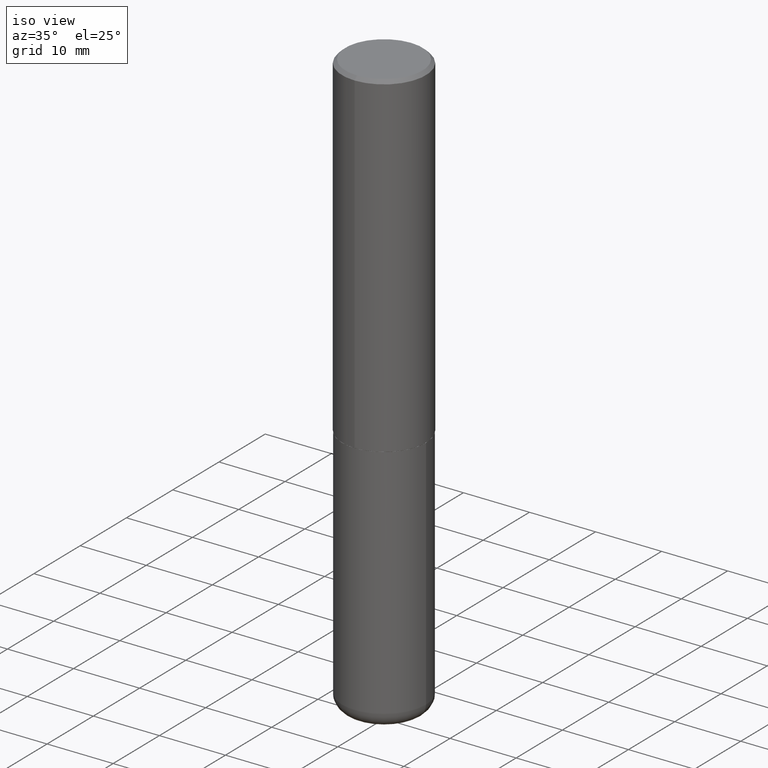
[diagram: clean part render]
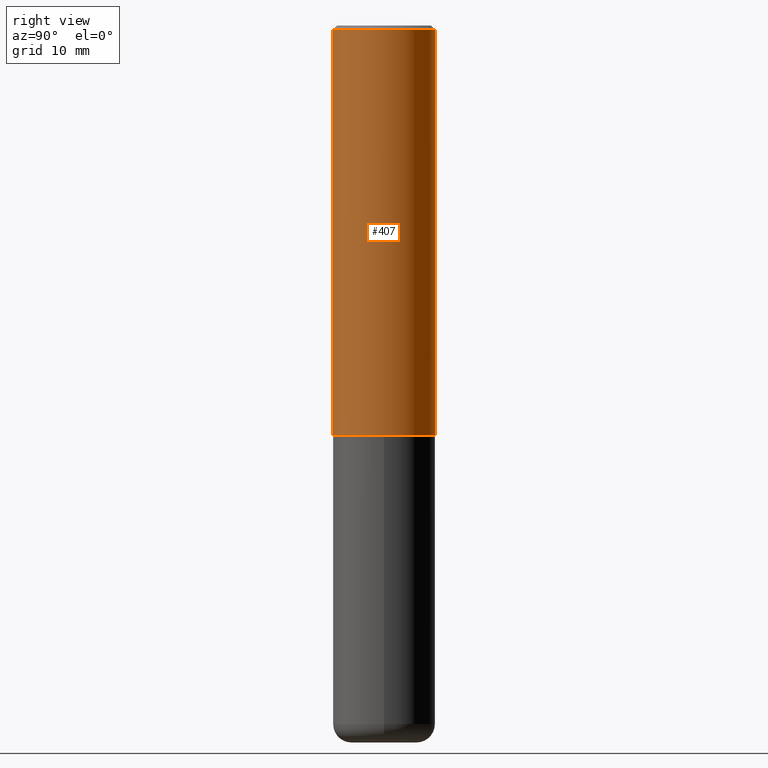
[diagram: tour spotlight — one face highlighted and labeled with its STEP entity id]
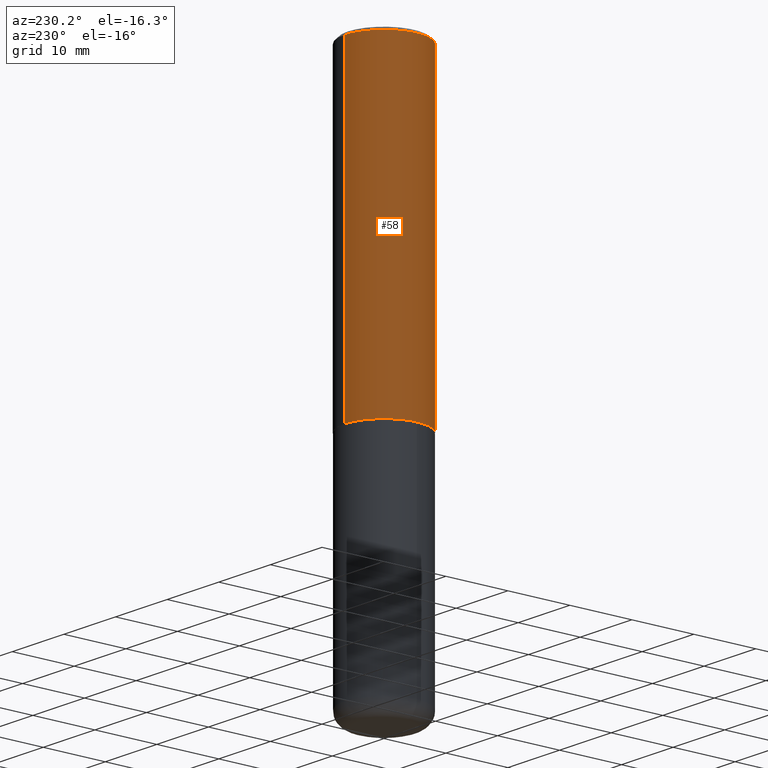
[diagram: tour spotlight — one face highlighted and labeled with its STEP entity id]
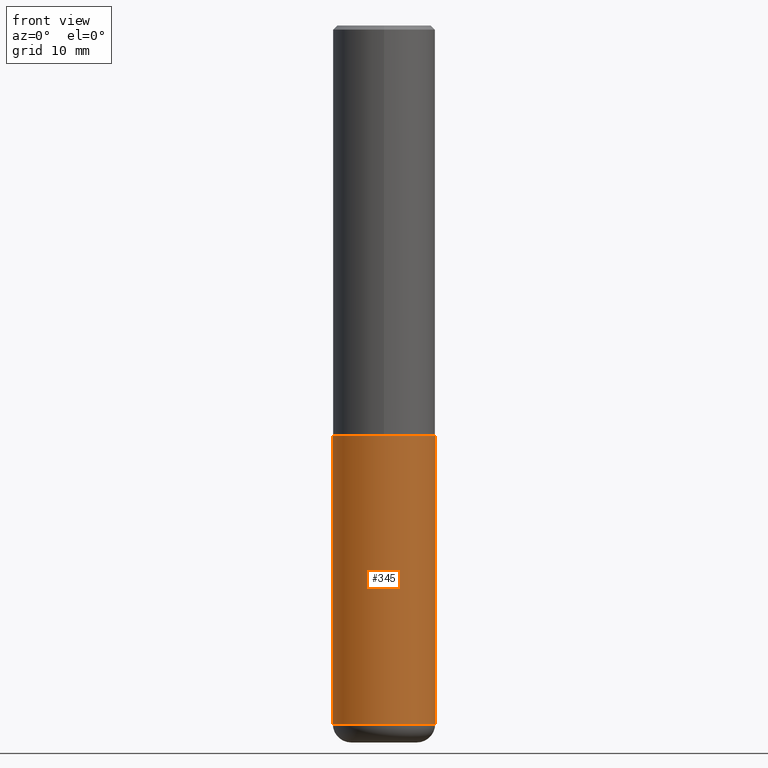
[diagram: tour spotlight — one face highlighted and labeled with its STEP entity id]
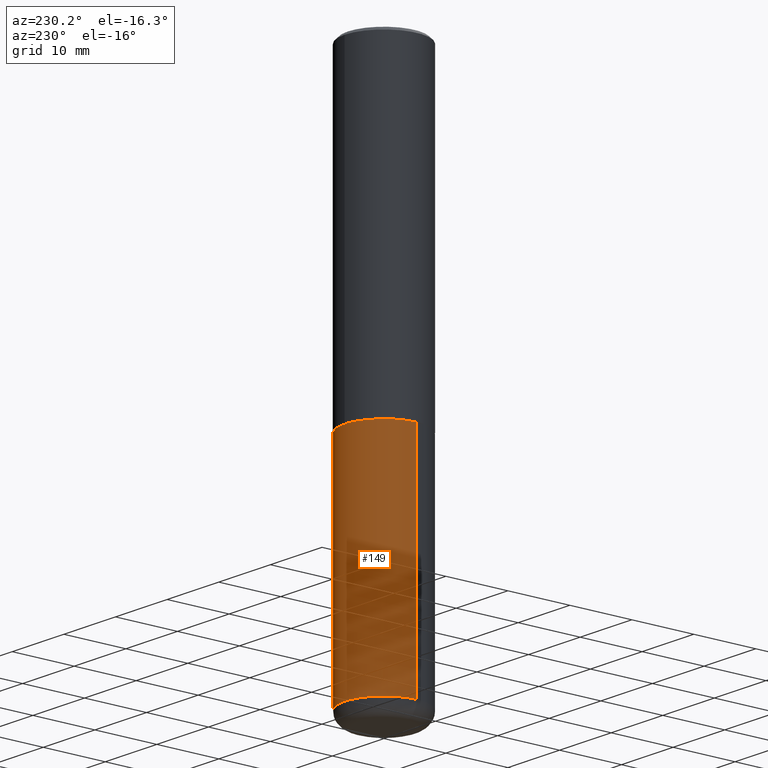
[diagram: tour spotlight — one face highlighted and labeled with its STEP entity id]
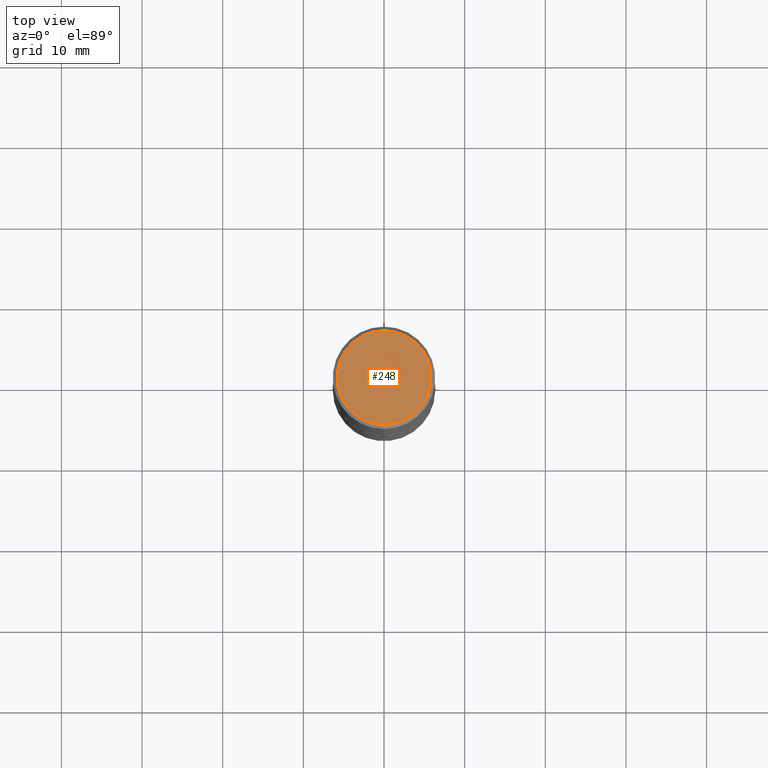
[diagram: tour spotlight — one face highlighted and labeled with its STEP entity id]
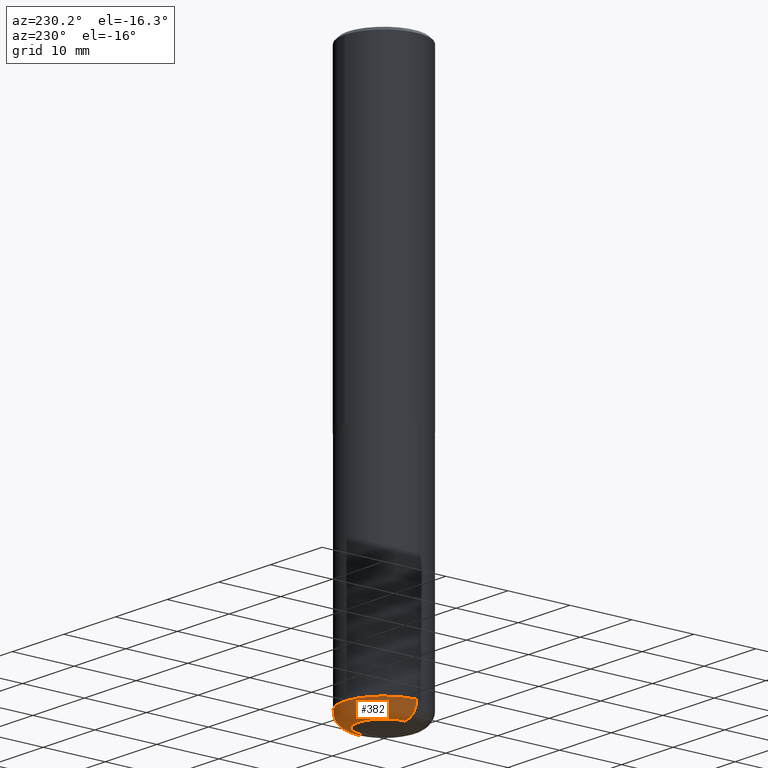
[diagram: tour spotlight — one face highlighted and labeled with its STEP entity id]
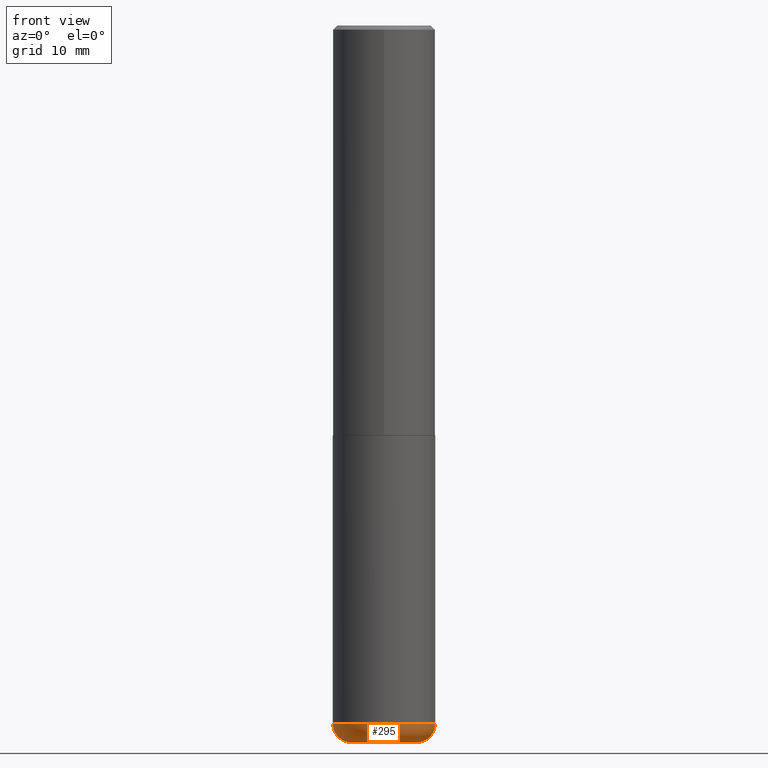
[diagram: tour spotlight — one face highlighted and labeled with its STEP entity id]
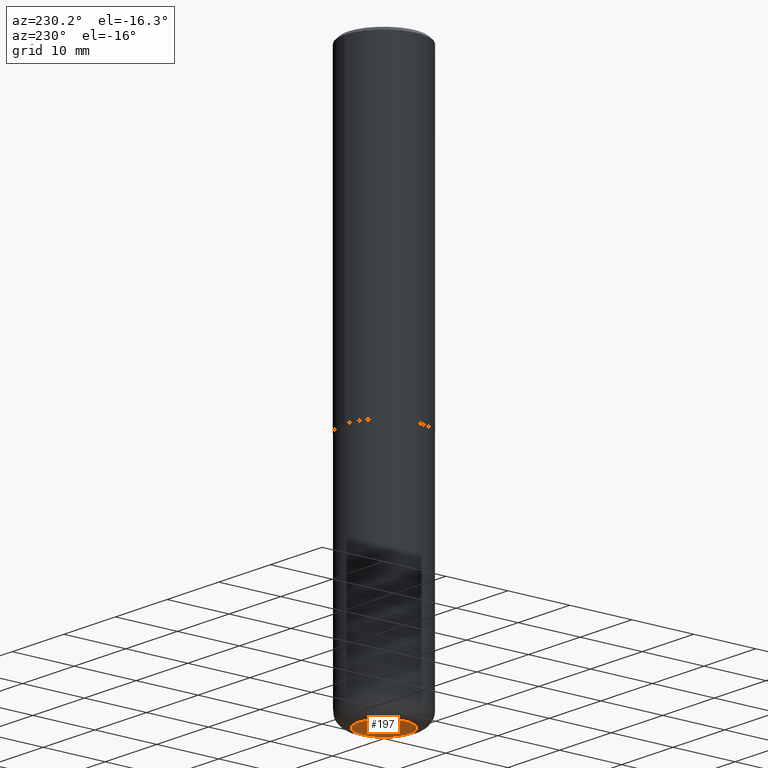
[diagram: tour spotlight — one face highlighted and labeled with its STEP entity id]
A machine part: a face-by-face anatomy tour. The part has 14 B-rep faces; the first image is the clean iso view, then the 8 largest visible faces are spotlighted one at a time (largest first), each with its STEP entity span.

Face 1 — right view, entity #407. In plain terms, the highlighted cylindrical surface (partial cylindrical patch) has radius 6.35 mm, axis along (-0, 0, 1).
Definition (entity closure, byte-faithful):
#2 = ORIENTED_EDGE ( 'NONE', *, *, #416, .F. ) ;
#16 = CARTESIAN_POINT ( 'NONE',  ( 4.891474366573836672E-31, -6.982194015116674235E-17, -0.02000000000000005593 ) ) ;
#33 = ORIENTED_EDGE ( 'NONE', *, *, #300, .T. ) ;
#55 = CARTESIAN_POINT ( 'NONE',  ( 4.889028629390535480E-29, -6.978702918109095527E-15, -1.998999999999999666 ) ) ;
#67 = CARTESIAN_POINT ( 'NONE',  ( -1.745740669421519543E-15, -0.2500000000000072164, -1.998999999999998778 ) ) ;
#86 = CARTESIAN_POINT ( 'NONE',  ( 1.745740669421566875E-15, 0.2499999999999999167, -0.02000000000000092676 ) ) ;
#90 = CIRCLE ( 'NONE', #163, 0.2500000000000000000 ) ;
#121 = VERTEX_POINT ( 'NONE', #297 ) ;
#125 = ORIENTED_EDGE ( 'NONE', *, *, #323, .T. ) ;
#127 = VERTEX_POINT ( 'NONE', #67 ) ;
#133 = CARTESIAN_POINT ( 'NONE',  ( -1.745740669421567467E-15, -0.2500000000000001110, 8.727742518895823935E-16 ) ) ;
#146 = EDGE_LOOP ( 'NONE', ( #33, #125, #2, #148 ) ) ;
#148 = ORIENTED_EDGE ( 'NONE', *, *, #191, .F. ) ;
#163 = AXIS2_PLACEMENT_3D ( 'NONE', #16, #365, #222 ) ;
#168 = CYLINDRICAL_SURFACE ( 'NONE', #216, 0.2500000000000001110 ) ;
#172 = DIRECTION ( 'NONE',  ( -6.982962677686265922E-15, -1.000000000000000000, 3.278217592397112312E-15 ) ) ;
#175 = CARTESIAN_POINT ( 'NONE',  ( 0.000000000000000000, 0.000000000000000000, 0.000000000000000000 ) ) ;
#191 = EDGE_CURVE ( 'NONE', #127, #121, #244, .T. ) ;
#198 = VERTEX_POINT ( 'NONE', #246 ) ;
#216 = AXIS2_PLACEMENT_3D ( 'NONE', #175, #313, #302 ) ;
#222 = DIRECTION ( 'NONE',  ( -6.982962677686265922E-15, -1.000000000000000000, 3.483106191921935554E-15 ) ) ;
#235 = VECTOR ( 'NONE', #338, 39.37007874015748143 ) ;
#236 = VERTEX_POINT ( 'NONE', #86 ) ;
#244 = LINE ( 'NONE', #133, #334 ) ;
#246 = CARTESIAN_POINT ( 'NONE',  ( 1.776356839400276103E-15, 0.2499999999999933109, -1.999000000000000554 ) ) ;
#279 = DIRECTION ( 'NONE',  ( -2.445737183286911680E-29, 3.491097007558327602E-15, 1.000000000000000000 ) ) ;
#281 = LINE ( 'NONE', #328, #235 ) ;
#297 = CARTESIAN_POINT ( 'NONE',  ( -1.715124499442882299E-15, -0.2500000000000000555, -0.01999999999999918510 ) ) ;
#300 = EDGE_CURVE ( 'NONE', #127, #198, #393, .T. ) ;
#302 = DIRECTION ( 'NONE',  ( -6.982962677686266711E-15, -1.000000000000000000, 3.491097007558327996E-15 ) ) ;
#313 = DIRECTION ( 'NONE',  ( -2.445737183286911680E-29, 3.491097007558327602E-15, 1.000000000000000000 ) ) ;
#323 = EDGE_CURVE ( 'NONE', #198, #236, #281, .T. ) ;
#328 = CARTESIAN_POINT ( 'NONE',  ( 1.776356839400251254E-15, 0.2500000000000001110, -8.727742518895823935E-16 ) ) ;
#334 = VECTOR ( 'NONE', #366, 39.37007874015748143 ) ;
#338 = DIRECTION ( 'NONE',  ( -2.445737183286911680E-29, 3.491097007558327602E-15, 1.000000000000000000 ) ) ;
#348 = AXIS2_PLACEMENT_3D ( 'NONE', #55, #279, #172 ) ;
#363 = FACE_OUTER_BOUND ( 'NONE', #146, .T. ) ;
#365 = DIRECTION ( 'NONE',  ( -2.445737183286911680E-29, 3.491097007558327602E-15, 1.000000000000000000 ) ) ;
#366 = DIRECTION ( 'NONE',  ( -2.445737183286911680E-29, 3.491097007558327602E-15, 1.000000000000000000 ) ) ;
#393 = CIRCLE ( 'NONE', #348, 0.2500000000000002776 ) ;
#407 = ADVANCED_FACE ( 'NONE', ( #363 ), #168, .T. ) ;
#416 = EDGE_CURVE ( 'NONE', #121, #236, #90, .T. ) ;

Face 2 — auxiliary view, entity #58. In plain terms, the highlighted cylindrical surface (partial cylindrical patch) has radius 6.35 mm, axis along (-0, 0, 1).
Definition (entity closure, byte-faithful):
#6 = AXIS2_PLACEMENT_3D ( 'NONE', #207, #199, #140 ) ;
#7 = DIRECTION ( 'NONE',  ( -6.982962677686265922E-15, -1.000000000000000000, 3.483106191921935554E-15 ) ) ;
#32 = EDGE_CURVE ( 'NONE', #236, #121, #57, .T. ) ;
#43 = FACE_OUTER_BOUND ( 'NONE', #129, .T. ) ;
#53 = ORIENTED_EDGE ( 'NONE', *, *, #183, .T. ) ;
#57 = CIRCLE ( 'NONE', #240, 0.2500000000000000000 ) ;
#58 = ADVANCED_FACE ( 'NONE', ( #43 ), #306, .T. ) ;
#64 = CARTESIAN_POINT ( 'NONE',  ( 4.891474366573836672E-31, -6.982194015116674235E-17, -0.02000000000000005593 ) ) ;
#67 = CARTESIAN_POINT ( 'NONE',  ( -1.745740669421519543E-15, -0.2500000000000072164, -1.998999999999998778 ) ) ;
#86 = CARTESIAN_POINT ( 'NONE',  ( 1.745740669421566875E-15, 0.2499999999999999167, -0.02000000000000092676 ) ) ;
#106 = DIRECTION ( 'NONE',  ( -6.982962677686265922E-15, -1.000000000000000000, 3.278217592397112312E-15 ) ) ;
#121 = VERTEX_POINT ( 'NONE', #297 ) ;
#127 = VERTEX_POINT ( 'NONE', #67 ) ;
#129 = EDGE_LOOP ( 'NONE', ( #282, #53, #156, #258 ) ) ;
#133 = CARTESIAN_POINT ( 'NONE',  ( -1.745740669421567467E-15, -0.2500000000000001110, 8.727742518895823935E-16 ) ) ;
#140 = DIRECTION ( 'NONE',  ( -6.982962677686266711E-15, -1.000000000000000000, 3.491097007558327996E-15 ) ) ;
#156 = ORIENTED_EDGE ( 'NONE', *, *, #191, .T. ) ;
#169 = CARTESIAN_POINT ( 'NONE',  ( 4.889028629390535480E-29, -6.978702918109095527E-15, -1.998999999999999666 ) ) ;
#183 = EDGE_CURVE ( 'NONE', #198, #127, #409, .T. ) ;
#191 = EDGE_CURVE ( 'NONE', #127, #121, #244, .T. ) ;
#198 = VERTEX_POINT ( 'NONE', #246 ) ;
#199 = DIRECTION ( 'NONE',  ( -2.445737183286911680E-29, 3.491097007558327602E-15, 1.000000000000000000 ) ) ;
#207 = CARTESIAN_POINT ( 'NONE',  ( 0.000000000000000000, 0.000000000000000000, 0.000000000000000000 ) ) ;
#223 = DIRECTION ( 'NONE',  ( -2.445737183286911680E-29, 3.491097007558327602E-15, 1.000000000000000000 ) ) ;
#227 = AXIS2_PLACEMENT_3D ( 'NONE', #169, #303, #106 ) ;
#235 = VECTOR ( 'NONE', #338, 39.37007874015748143 ) ;
#236 = VERTEX_POINT ( 'NONE', #86 ) ;
#240 = AXIS2_PLACEMENT_3D ( 'NONE', #64, #223, #7 ) ;
#244 = LINE ( 'NONE', #133, #334 ) ;
#246 = CARTESIAN_POINT ( 'NONE',  ( 1.776356839400276103E-15, 0.2499999999999933109, -1.999000000000000554 ) ) ;
#258 = ORIENTED_EDGE ( 'NONE', *, *, #32, .F. ) ;
#281 = LINE ( 'NONE', #328, #235 ) ;
#282 = ORIENTED_EDGE ( 'NONE', *, *, #323, .F. ) ;
#297 = CARTESIAN_POINT ( 'NONE',  ( -1.715124499442882299E-15, -0.2500000000000000555, -0.01999999999999918510 ) ) ;
#303 = DIRECTION ( 'NONE',  ( -2.445737183286911680E-29, 3.491097007558327602E-15, 1.000000000000000000 ) ) ;
#306 = CYLINDRICAL_SURFACE ( 'NONE', #6, 0.2500000000000001110 ) ;
#323 = EDGE_CURVE ( 'NONE', #198, #236, #281, .T. ) ;
#328 = CARTESIAN_POINT ( 'NONE',  ( 1.776356839400251254E-15, 0.2500000000000001110, -8.727742518895823935E-16 ) ) ;
#334 = VECTOR ( 'NONE', #366, 39.37007874015748143 ) ;
#338 = DIRECTION ( 'NONE',  ( -2.445737183286911680E-29, 3.491097007558327602E-15, 1.000000000000000000 ) ) ;
#366 = DIRECTION ( 'NONE',  ( -2.445737183286911680E-29, 3.491097007558327602E-15, 1.000000000000000000 ) ) ;
#409 = CIRCLE ( 'NONE', #227, 0.2500000000000002776 ) ;

Face 3 — front view, entity #345. In plain terms, the highlighted cylindrical surface (partial cylindrical patch) has radius 6.35 mm, axis along (-0, 0, 1).
Definition (entity closure, byte-faithful):
#10 = CARTESIAN_POINT ( 'NONE',  ( -0.2500000000000000000, -7.668100182170457762E-15, -1.999999999999999778 ) ) ;
#11 = EDGE_CURVE ( 'NONE', #385, #120, #362, .T. ) ;
#14 = DIRECTION ( 'NONE',  ( -2.445468806185136877E-29, 3.491481338843145188E-15, 1.000000000000000000 ) ) ;
#25 = AXIS2_PLACEMENT_3D ( 'NONE', #263, #389, #384 ) ;
#34 = LINE ( 'NONE', #135, #49 ) ;
#37 = CARTESIAN_POINT ( 'NONE',  ( 4.890937612370272633E-29, -6.982962677686290376E-15, -1.999999999999999778 ) ) ;
#42 = CARTESIAN_POINT ( 'NONE',  ( 0.000000000000000000, 0.000000000000000000, 0.000000000000000000 ) ) ;
#49 = VECTOR ( 'NONE', #14, 39.37007874015748143 ) ;
#89 = ORIENTED_EDGE ( 'NONE', *, *, #147, .F. ) ;
#100 = EDGE_CURVE ( 'NONE', #385, #413, #34, .T. ) ;
#120 = VERTEX_POINT ( 'NONE', #299 ) ;
#124 = AXIS2_PLACEMENT_3D ( 'NONE', #37, #210, #166 ) ;
#130 = ORIENTED_EDGE ( 'NONE', *, *, #134, .T. ) ;
#134 = EDGE_CURVE ( 'NONE', #120, #391, #301, .T. ) ;
#135 = CARTESIAN_POINT ( 'NONE',  ( -0.2500000000000000000, 1.776356839400250465E-15, -1.229733772563726445E-29 ) ) ;
#147 = EDGE_CURVE ( 'NONE', #413, #391, #283, .T. ) ;
#154 = EDGE_LOOP ( 'NONE', ( #256, #293, #130, #89 ) ) ;
#166 = DIRECTION ( 'NONE',  ( 1.000000000000000000, -6.982962677686266711E-15, 0.000000000000000000 ) ) ;
#178 = FACE_OUTER_BOUND ( 'NONE', #154, .T. ) ;
#202 = CARTESIAN_POINT ( 'NONE',  ( 0.2500000000000000000, -1.745740669421566678E-15, 1.219044193948983948E-29 ) ) ;
#209 = DIRECTION ( 'NONE',  ( -2.445468806185136597E-29, 3.491481338843145583E-15, 1.000000000000000000 ) ) ;
#210 = DIRECTION ( 'NONE',  ( -2.445468806185136597E-29, 3.491481338843145583E-15, 1.000000000000000000 ) ) ;
#214 = CYLINDRICAL_SURFACE ( 'NONE', #392, 0.2500000000000000000 ) ;
#256 = ORIENTED_EDGE ( 'NONE', *, *, #100, .F. ) ;
#263 = CARTESIAN_POINT ( 'NONE',  ( 8.339048629091315302E-29, -1.190595136545512608E-14, -3.410000000000000142 ) ) ;
#268 = VECTOR ( 'NONE', #327, 39.37007874015748143 ) ;
#283 = CIRCLE ( 'NONE', #124, 0.2500000000000000000 ) ;
#293 = ORIENTED_EDGE ( 'NONE', *, *, #11, .T. ) ;
#299 = CARTESIAN_POINT ( 'NONE',  ( 0.2499999999999998612, -1.365169203487669276E-14, -3.410000000000000142 ) ) ;
#301 = LINE ( 'NONE', #202, #268 ) ;
#315 = DIRECTION ( 'NONE',  ( 1.000000000000000000, -6.982962677686266711E-15, 4.876176775795935793E-29 ) ) ;
#327 = DIRECTION ( 'NONE',  ( -2.445468806185136877E-29, 3.491481338843145188E-15, 1.000000000000000000 ) ) ;
#337 = CARTESIAN_POINT ( 'NONE',  ( -0.2499999999999998612, -1.012959452605487719E-14, -3.410000000000000142 ) ) ;
#345 = ADVANCED_FACE ( 'NONE', ( #178 ), #214, .T. ) ;
#362 = CIRCLE ( 'NONE', #25, 0.2500000000000000555 ) ;
#384 = DIRECTION ( 'NONE',  ( 1.000000000000000000, -6.982962677686269077E-15, 0.000000000000000000 ) ) ;
#385 = VERTEX_POINT ( 'NONE', #337 ) ;
#389 = DIRECTION ( 'NONE',  ( -2.445468806185136597E-29, 3.491481338843145583E-15, 1.000000000000000000 ) ) ;
#391 = VERTEX_POINT ( 'NONE', #399 ) ;
#392 = AXIS2_PLACEMENT_3D ( 'NONE', #42, #209, #315 ) ;
#399 = CARTESIAN_POINT ( 'NONE',  ( 0.2500000000000000000, -8.728703347107857054E-15, -1.999999999999999778 ) ) ;
#413 = VERTEX_POINT ( 'NONE', #10 ) ;

Face 4 — auxiliary view, entity #149. In plain terms, the highlighted cylindrical surface (partial cylindrical patch) has radius 6.35 mm, axis along (-0, 0, 1).
Definition (entity closure, byte-faithful):
#8 = FACE_OUTER_BOUND ( 'NONE', #264, .T. ) ;
#10 = CARTESIAN_POINT ( 'NONE',  ( -0.2500000000000000000, -7.668100182170457762E-15, -1.999999999999999778 ) ) ;
#14 = DIRECTION ( 'NONE',  ( -2.445468806185136877E-29, 3.491481338843145188E-15, 1.000000000000000000 ) ) ;
#20 = AXIS2_PLACEMENT_3D ( 'NONE', #252, #403, #367 ) ;
#34 = LINE ( 'NONE', #135, #49 ) ;
#49 = VECTOR ( 'NONE', #14, 39.37007874015748143 ) ;
#70 = DIRECTION ( 'NONE',  ( 1.000000000000000000, -6.982962677686269077E-15, 0.000000000000000000 ) ) ;
#97 = ORIENTED_EDGE ( 'NONE', *, *, #126, .T. ) ;
#100 = EDGE_CURVE ( 'NONE', #385, #413, #34, .T. ) ;
#103 = AXIS2_PLACEMENT_3D ( 'NONE', #360, #364, #70 ) ;
#120 = VERTEX_POINT ( 'NONE', #299 ) ;
#126 = EDGE_CURVE ( 'NONE', #120, #385, #316, .T. ) ;
#134 = EDGE_CURVE ( 'NONE', #120, #391, #301, .T. ) ;
#135 = CARTESIAN_POINT ( 'NONE',  ( -0.2500000000000000000, 1.776356839400250465E-15, -1.229733772563726445E-29 ) ) ;
#149 = ADVANCED_FACE ( 'NONE', ( #8 ), #369, .T. ) ;
#202 = CARTESIAN_POINT ( 'NONE',  ( 0.2500000000000000000, -1.745740669421566678E-15, 1.219044193948983948E-29 ) ) ;
#204 = DIRECTION ( 'NONE',  ( 1.000000000000000000, -6.982962677686266711E-15, 4.876176775795935793E-29 ) ) ;
#252 = CARTESIAN_POINT ( 'NONE',  ( 4.890937612370272633E-29, -6.982962677686290376E-15, -1.999999999999999778 ) ) ;
#264 = EDGE_LOOP ( 'NONE', ( #97, #292, #351, #310 ) ) ;
#268 = VECTOR ( 'NONE', #327, 39.37007874015748143 ) ;
#275 = CARTESIAN_POINT ( 'NONE',  ( 0.000000000000000000, 0.000000000000000000, 0.000000000000000000 ) ) ;
#292 = ORIENTED_EDGE ( 'NONE', *, *, #100, .T. ) ;
#299 = CARTESIAN_POINT ( 'NONE',  ( 0.2499999999999998612, -1.365169203487669276E-14, -3.410000000000000142 ) ) ;
#301 = LINE ( 'NONE', #202, #268 ) ;
#310 = ORIENTED_EDGE ( 'NONE', *, *, #134, .F. ) ;
#316 = CIRCLE ( 'NONE', #103, 0.2500000000000000555 ) ;
#317 = EDGE_CURVE ( 'NONE', #391, #413, #400, .T. ) ;
#326 = AXIS2_PLACEMENT_3D ( 'NONE', #275, #397, #204 ) ;
#327 = DIRECTION ( 'NONE',  ( -2.445468806185136877E-29, 3.491481338843145188E-15, 1.000000000000000000 ) ) ;
#337 = CARTESIAN_POINT ( 'NONE',  ( -0.2499999999999998612, -1.012959452605487719E-14, -3.410000000000000142 ) ) ;
#351 = ORIENTED_EDGE ( 'NONE', *, *, #317, .F. ) ;
#360 = CARTESIAN_POINT ( 'NONE',  ( 8.339048629091315302E-29, -1.190595136545512608E-14, -3.410000000000000142 ) ) ;
#364 = DIRECTION ( 'NONE',  ( -2.445468806185136597E-29, 3.491481338843145583E-15, 1.000000000000000000 ) ) ;
#367 = DIRECTION ( 'NONE',  ( 1.000000000000000000, -6.982962677686266711E-15, 0.000000000000000000 ) ) ;
#369 = CYLINDRICAL_SURFACE ( 'NONE', #326, 0.2500000000000000000 ) ;
#385 = VERTEX_POINT ( 'NONE', #337 ) ;
#391 = VERTEX_POINT ( 'NONE', #399 ) ;
#397 = DIRECTION ( 'NONE',  ( -2.445468806185136597E-29, 3.491481338843145583E-15, 1.000000000000000000 ) ) ;
#399 = CARTESIAN_POINT ( 'NONE',  ( 0.2500000000000000000, -8.728703347107857054E-15, -1.999999999999999778 ) ) ;
#400 = CIRCLE ( 'NONE', #20, 0.2500000000000000000 ) ;
#403 = DIRECTION ( 'NONE',  ( -2.445468806185136597E-29, 3.491481338843145583E-15, 1.000000000000000000 ) ) ;
#413 = VERTEX_POINT ( 'NONE', #10 ) ;

Face 5 — top view, entity #248. In plain terms, the highlighted planar face has unit normal (0, -0, -1).
Definition (entity closure, byte-faithful):
#18 = DIRECTION ( 'NONE',  ( -2.445737183286911680E-29, 3.491097007558327602E-15, 1.000000000000000000 ) ) ;
#29 = ORIENTED_EDGE ( 'NONE', *, *, #220, .T. ) ;
#47 = CARTESIAN_POINT ( 'NONE',  ( -1.646519519465166968E-15, -0.2299999999999999822, 7.772528406023046093E-16 ) ) ;
#95 = AXIS2_PLACEMENT_3D ( 'NONE', #173, #341, #218 ) ;
#152 = CIRCLE ( 'NONE', #213, 0.2299999999999999822 ) ;
#155 = VERTEX_POINT ( 'NONE', #329 ) ;
#173 = CARTESIAN_POINT ( 'NONE',  ( 1.606081415867841067E-15, 0.2299999999999999822, -8.158020473064706174E-16 ) ) ;
#179 = DIRECTION ( 'NONE',  ( -6.982962677686265922E-15, -1.000000000000000000, 3.491097007558327207E-15 ) ) ;
#181 = AXIS2_PLACEMENT_3D ( 'NONE', #309, #18, #287 ) ;
#192 = EDGE_LOOP ( 'NONE', ( #29, #261 ) ) ;
#213 = AXIS2_PLACEMENT_3D ( 'NONE', #346, #339, #179 ) ;
#218 = DIRECTION ( 'NONE',  ( 6.982962677686265922E-15, 1.000000000000000000, -3.491097007558327602E-15 ) ) ;
#220 = EDGE_CURVE ( 'NONE', #155, #294, #152, .T. ) ;
#248 = ADVANCED_FACE ( 'NONE', ( #255 ), #344, .F. ) ;
#255 = FACE_OUTER_BOUND ( 'NONE', #192, .T. ) ;
#261 = ORIENTED_EDGE ( 'NONE', *, *, #355, .T. ) ;
#287 = DIRECTION ( 'NONE',  ( -6.982962677686265922E-15, -1.000000000000000000, 3.491097007558327207E-15 ) ) ;
#294 = VERTEX_POINT ( 'NONE', #47 ) ;
#309 = CARTESIAN_POINT ( 'NONE',  ( 6.285415214839433991E-46, -8.971934677910720830E-32, -2.569947113611056727E-17 ) ) ;
#329 = CARTESIAN_POINT ( 'NONE',  ( 1.675911042644703774E-15, 0.2299999999999999822, -8.286517828745257562E-16 ) ) ;
#335 = CIRCLE ( 'NONE', #181, 0.2299999999999999822 ) ;
#339 = DIRECTION ( 'NONE',  ( -2.445737183286911680E-29, 3.491097007558327602E-15, 1.000000000000000000 ) ) ;
#341 = DIRECTION ( 'NONE',  ( 2.445737183286911400E-29, -3.491097007558327602E-15, -1.000000000000000000 ) ) ;
#344 = PLANE ( 'NONE',  #95 ) ;
#346 = CARTESIAN_POINT ( 'NONE',  ( 6.285415214839433991E-46, -8.971934677910720830E-32, -2.569947113611056727E-17 ) ) ;
#355 = EDGE_CURVE ( 'NONE', #294, #155, #335, .T. ) ;

Face 6 — auxiliary view, entity #382. In plain terms, the highlighted toroidal blend (fillet) surface has major radius 4.064 mm and minor (blend) radius 2.286 mm.
Definition (entity closure, byte-faithful):
#4 = DIRECTION ( 'NONE',  ( -2.445468806185136597E-29, 3.491481338843145583E-15, 1.000000000000000000 ) ) ;
#35 = CIRCLE ( 'NONE', #386, 0.08999999999999964972 ) ;
#36 = AXIS2_PLACEMENT_3D ( 'NONE', #331, #274, #143 ) ;
#41 = DIRECTION ( 'NONE',  ( 1.000000000000000000, -6.982962677686259611E-15, 0.000000000000000000 ) ) ;
#66 = CARTESIAN_POINT ( 'NONE',  ( 0.1600000000000000033, -1.333745871438080791E-14, -3.499999999999999112 ) ) ;
#69 = CARTESIAN_POINT ( 'NONE',  ( 8.339048629091315302E-29, -1.190595136545512608E-14, -3.410000000000000142 ) ) ;
#70 = DIRECTION ( 'NONE',  ( 1.000000000000000000, -6.982962677686269077E-15, 0.000000000000000000 ) ) ;
#78 = DIRECTION ( 'NONE',  ( -2.445468806185136597E-29, 3.491481338843145583E-15, 1.000000000000000000 ) ) ;
#93 = ORIENTED_EDGE ( 'NONE', *, *, #126, .F. ) ;
#103 = AXIS2_PLACEMENT_3D ( 'NONE', #360, #364, #70 ) ;
#112 = DIRECTION ( 'NONE',  ( 7.105427357601001859E-15, 1.000000000000000000, -3.491481338843145583E-15 ) ) ;
#115 = VERTEX_POINT ( 'NONE', #66 ) ;
#120 = VERTEX_POINT ( 'NONE', #299 ) ;
#126 = EDGE_CURVE ( 'NONE', #120, #385, #316, .T. ) ;
#132 = CIRCLE ( 'NONE', #285, 0.1600000000000000033 ) ;
#143 = DIRECTION ( 'NONE',  ( 1.000000000000000000, -6.982962677686273810E-15, 0.000000000000000000 ) ) ;
#160 = ORIENTED_EDGE ( 'NONE', *, *, #376, .F. ) ;
#176 = EDGE_CURVE ( 'NONE', #115, #349, #132, .T. ) ;
#184 = DIRECTION ( 'NONE',  ( -1.000000000000000000, 7.105427357600996337E-15, 0.000000000000000000 ) ) ;
#206 = FACE_OUTER_BOUND ( 'NONE', #408, .T. ) ;
#247 = CARTESIAN_POINT ( 'NONE',  ( -0.1600000000000000033, -1.060645541739486182E-14, -3.499999999999999112 ) ) ;
#267 = AXIS2_PLACEMENT_3D ( 'NONE', #69, #78, #370 ) ;
#274 = DIRECTION ( 'NONE',  ( -6.982962677686266711E-15, -1.000000000000000000, 3.491481338843145583E-15 ) ) ;
#278 = EDGE_CURVE ( 'NONE', #349, #385, #35, .T. ) ;
#285 = AXIS2_PLACEMENT_3D ( 'NONE', #336, #4, #41 ) ;
#299 = CARTESIAN_POINT ( 'NONE',  ( 0.2499999999999998612, -1.365169203487669276E-14, -3.410000000000000142 ) ) ;
#305 = TOROIDAL_SURFACE ( 'NONE', #267, 0.1600000000000000033, 0.08999999999999967748 ) ;
#311 = CARTESIAN_POINT ( 'NONE',  ( -0.1600000000000000033, -1.076908298823896635E-14, -3.410000000000000142 ) ) ;
#316 = CIRCLE ( 'NONE', #103, 0.2500000000000000555 ) ;
#321 = ORIENTED_EDGE ( 'NONE', *, *, #176, .T. ) ;
#331 = CARTESIAN_POINT ( 'NONE',  ( 0.1600000000000000033, -1.302322539388492780E-14, -3.410000000000000142 ) ) ;
#336 = CARTESIAN_POINT ( 'NONE',  ( 8.559140821647976968E-29, -1.222018468595100619E-14, -3.499999999999999112 ) ) ;
#337 = CARTESIAN_POINT ( 'NONE',  ( -0.2499999999999998612, -1.012959452605487719E-14, -3.410000000000000142 ) ) ;
#349 = VERTEX_POINT ( 'NONE', #247 ) ;
#360 = CARTESIAN_POINT ( 'NONE',  ( 8.339048629091315302E-29, -1.190595136545512608E-14, -3.410000000000000142 ) ) ;
#364 = DIRECTION ( 'NONE',  ( -2.445468806185136597E-29, 3.491481338843145583E-15, 1.000000000000000000 ) ) ;
#370 = DIRECTION ( 'NONE',  ( 1.000000000000000000, -6.982962677686265133E-15, 4.883557194083112340E-29 ) ) ;
#376 = EDGE_CURVE ( 'NONE', #115, #120, #380, .T. ) ;
#380 = CIRCLE ( 'NONE', #36, 0.08999999999999964972 ) ;
#382 = ADVANCED_FACE ( 'NONE', ( #206 ), #305, .T. ) ;
#385 = VERTEX_POINT ( 'NONE', #337 ) ;
#386 = AXIS2_PLACEMENT_3D ( 'NONE', #311, #112, #184 ) ;
#387 = ORIENTED_EDGE ( 'NONE', *, *, #278, .T. ) ;
#408 = EDGE_LOOP ( 'NONE', ( #321, #387, #93, #160 ) ) ;

Face 7 — front view, entity #295. In plain terms, the highlighted toroidal blend (fillet) surface has major radius 4.064 mm and minor (blend) radius 2.286 mm.
Definition (entity closure, byte-faithful):
#5 = TOROIDAL_SURFACE ( 'NONE', #114, 0.1600000000000000033, 0.08999999999999967748 ) ;
#11 = EDGE_CURVE ( 'NONE', #385, #120, #362, .T. ) ;
#25 = AXIS2_PLACEMENT_3D ( 'NONE', #263, #389, #384 ) ;
#31 = ORIENTED_EDGE ( 'NONE', *, *, #108, .T. ) ;
#35 = CIRCLE ( 'NONE', #386, 0.08999999999999964972 ) ;
#36 = AXIS2_PLACEMENT_3D ( 'NONE', #331, #274, #143 ) ;
#44 = CARTESIAN_POINT ( 'NONE',  ( 8.559140821647976968E-29, -1.222018468595100619E-14, -3.499999999999999112 ) ) ;
#66 = CARTESIAN_POINT ( 'NONE',  ( 0.1600000000000000033, -1.333745871438080791E-14, -3.499999999999999112 ) ) ;
#91 = EDGE_LOOP ( 'NONE', ( #257, #31, #353, #225 ) ) ;
#99 = DIRECTION ( 'NONE',  ( 1.000000000000000000, -6.982962677686259611E-15, 0.000000000000000000 ) ) ;
#108 = EDGE_CURVE ( 'NONE', #349, #115, #340, .T. ) ;
#112 = DIRECTION ( 'NONE',  ( 7.105427357601001859E-15, 1.000000000000000000, -3.491481338843145583E-15 ) ) ;
#114 = AXIS2_PLACEMENT_3D ( 'NONE', #245, #375, #137 ) ;
#115 = VERTEX_POINT ( 'NONE', #66 ) ;
#120 = VERTEX_POINT ( 'NONE', #299 ) ;
#137 = DIRECTION ( 'NONE',  ( 1.000000000000000000, -6.982962677686265133E-15, 4.883557194083112340E-29 ) ) ;
#143 = DIRECTION ( 'NONE',  ( 1.000000000000000000, -6.982962677686273810E-15, 0.000000000000000000 ) ) ;
#184 = DIRECTION ( 'NONE',  ( -1.000000000000000000, 7.105427357600996337E-15, 0.000000000000000000 ) ) ;
#225 = ORIENTED_EDGE ( 'NONE', *, *, #11, .F. ) ;
#226 = AXIS2_PLACEMENT_3D ( 'NONE', #44, #332, #99 ) ;
#245 = CARTESIAN_POINT ( 'NONE',  ( 8.339048629091315302E-29, -1.190595136545512608E-14, -3.410000000000000142 ) ) ;
#247 = CARTESIAN_POINT ( 'NONE',  ( -0.1600000000000000033, -1.060645541739486182E-14, -3.499999999999999112 ) ) ;
#257 = ORIENTED_EDGE ( 'NONE', *, *, #278, .F. ) ;
#263 = CARTESIAN_POINT ( 'NONE',  ( 8.339048629091315302E-29, -1.190595136545512608E-14, -3.410000000000000142 ) ) ;
#274 = DIRECTION ( 'NONE',  ( -6.982962677686266711E-15, -1.000000000000000000, 3.491481338843145583E-15 ) ) ;
#278 = EDGE_CURVE ( 'NONE', #349, #385, #35, .T. ) ;
#295 = ADVANCED_FACE ( 'NONE', ( #314 ), #5, .T. ) ;
#299 = CARTESIAN_POINT ( 'NONE',  ( 0.2499999999999998612, -1.365169203487669276E-14, -3.410000000000000142 ) ) ;
#311 = CARTESIAN_POINT ( 'NONE',  ( -0.1600000000000000033, -1.076908298823896635E-14, -3.410000000000000142 ) ) ;
#314 = FACE_OUTER_BOUND ( 'NONE', #91, .T. ) ;
#331 = CARTESIAN_POINT ( 'NONE',  ( 0.1600000000000000033, -1.302322539388492780E-14, -3.410000000000000142 ) ) ;
#332 = DIRECTION ( 'NONE',  ( -2.445468806185136597E-29, 3.491481338843145583E-15, 1.000000000000000000 ) ) ;
#337 = CARTESIAN_POINT ( 'NONE',  ( -0.2499999999999998612, -1.012959452605487719E-14, -3.410000000000000142 ) ) ;
#340 = CIRCLE ( 'NONE', #226, 0.1600000000000000033 ) ;
#349 = VERTEX_POINT ( 'NONE', #247 ) ;
#353 = ORIENTED_EDGE ( 'NONE', *, *, #376, .T. ) ;
#362 = CIRCLE ( 'NONE', #25, 0.2500000000000000555 ) ;
#375 = DIRECTION ( 'NONE',  ( -2.445468806185136597E-29, 3.491481338843145583E-15, 1.000000000000000000 ) ) ;
#376 = EDGE_CURVE ( 'NONE', #115, #120, #380, .T. ) ;
#380 = CIRCLE ( 'NONE', #36, 0.08999999999999964972 ) ;
#384 = DIRECTION ( 'NONE',  ( 1.000000000000000000, -6.982962677686269077E-15, 0.000000000000000000 ) ) ;
#385 = VERTEX_POINT ( 'NONE', #337 ) ;
#386 = AXIS2_PLACEMENT_3D ( 'NONE', #311, #112, #184 ) ;
#389 = DIRECTION ( 'NONE',  ( -2.445468806185136597E-29, 3.491481338843145583E-15, 1.000000000000000000 ) ) ;

Face 8 — auxiliary view, entity #197. In plain terms, the highlighted planar face has unit normal (0, -0, -1).
Definition (entity closure, byte-faithful):
#4 = DIRECTION ( 'NONE',  ( -2.445468806185136597E-29, 3.491481338843145583E-15, 1.000000000000000000 ) ) ;
#41 = DIRECTION ( 'NONE',  ( 1.000000000000000000, -6.982962677686259611E-15, 0.000000000000000000 ) ) ;
#44 = CARTESIAN_POINT ( 'NONE',  ( 8.559140821647976968E-29, -1.222018468595100619E-14, -3.499999999999999112 ) ) ;
#66 = CARTESIAN_POINT ( 'NONE',  ( 0.1600000000000000033, -1.333745871438080791E-14, -3.499999999999999112 ) ) ;
#99 = DIRECTION ( 'NONE',  ( 1.000000000000000000, -6.982962677686259611E-15, 0.000000000000000000 ) ) ;
#108 = EDGE_CURVE ( 'NONE', #349, #115, #340, .T. ) ;
#110 = DIRECTION ( 'NONE',  ( -1.000000000000000000, 6.982962677686265922E-15, -4.876176775795935793E-29 ) ) ;
#115 = VERTEX_POINT ( 'NONE', #66 ) ;
#132 = CIRCLE ( 'NONE', #285, 0.1600000000000000033 ) ;
#170 = FACE_OUTER_BOUND ( 'NONE', #232, .T. ) ;
#176 = EDGE_CURVE ( 'NONE', #115, #349, #132, .T. ) ;
#189 = ORIENTED_EDGE ( 'NONE', *, *, #108, .F. ) ;
#197 = ADVANCED_FACE ( 'NONE', ( #170 ), #277, .T. ) ;
#226 = AXIS2_PLACEMENT_3D ( 'NONE', #44, #332, #99 ) ;
#232 = EDGE_LOOP ( 'NONE', ( #290, #189 ) ) ;
#247 = CARTESIAN_POINT ( 'NONE',  ( -0.1600000000000000033, -1.060645541739486182E-14, -3.499999999999999112 ) ) ;
#269 = DIRECTION ( 'NONE',  ( 2.438088387897960049E-29, -3.491481338843145188E-15, -1.000000000000000000 ) ) ;
#277 = PLANE ( 'NONE',  #371 ) ;
#285 = AXIS2_PLACEMENT_3D ( 'NONE', #336, #4, #41 ) ;
#290 = ORIENTED_EDGE ( 'NONE', *, *, #176, .F. ) ;
#332 = DIRECTION ( 'NONE',  ( -2.445468806185136597E-29, 3.491481338843145583E-15, 1.000000000000000000 ) ) ;
#336 = CARTESIAN_POINT ( 'NONE',  ( 8.559140821647976968E-29, -1.222018468595100619E-14, -3.499999999999999112 ) ) ;
#340 = CIRCLE ( 'NONE', #226, 0.1600000000000000033 ) ;
#349 = VERTEX_POINT ( 'NONE', #247 ) ;
#371 = AXIS2_PLACEMENT_3D ( 'NONE', #404, #269, #110 ) ;
#404 = CARTESIAN_POINT ( 'NONE',  ( 1.690506257577845460E-28, -2.683497136698531760E-16, -3.499999999999999112 ) ) ;